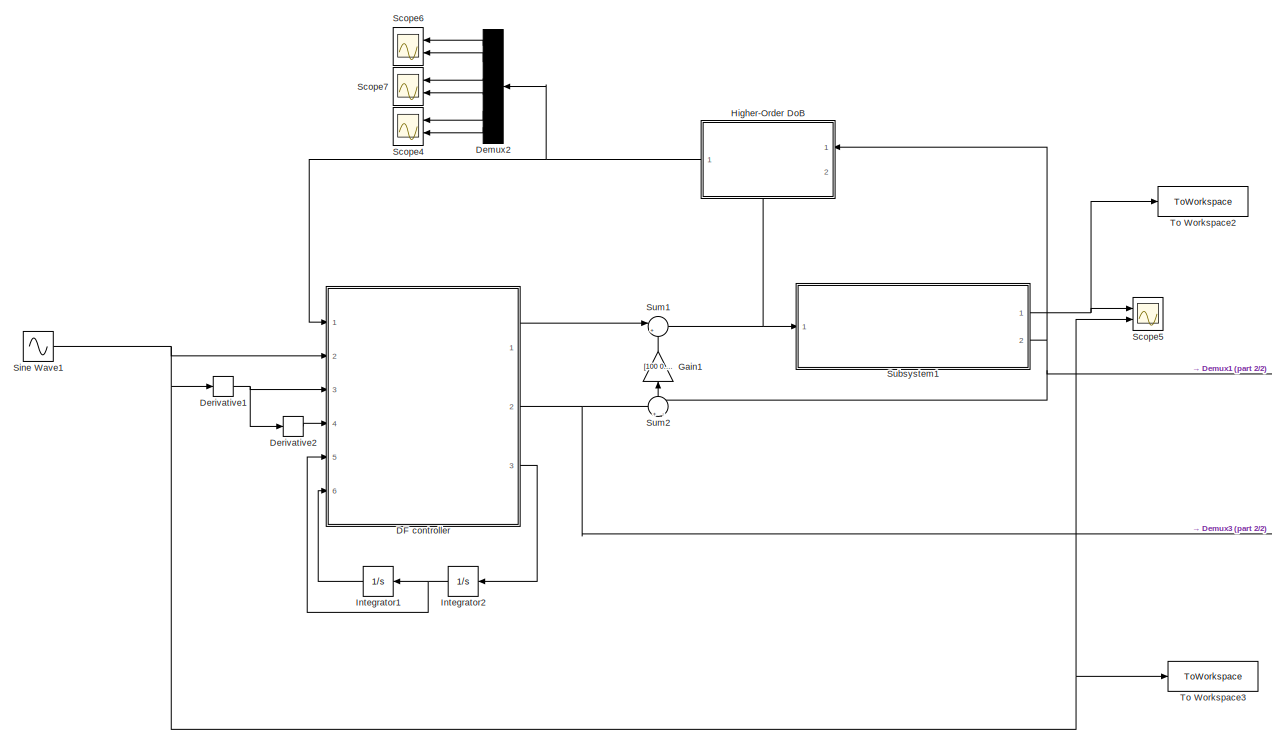
[diagram: root canvas - part 1/2, most of the canvas]
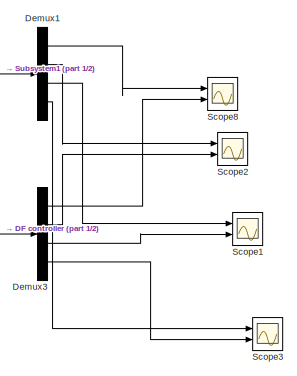
[diagram: root canvas - part 2/2, middle right region]
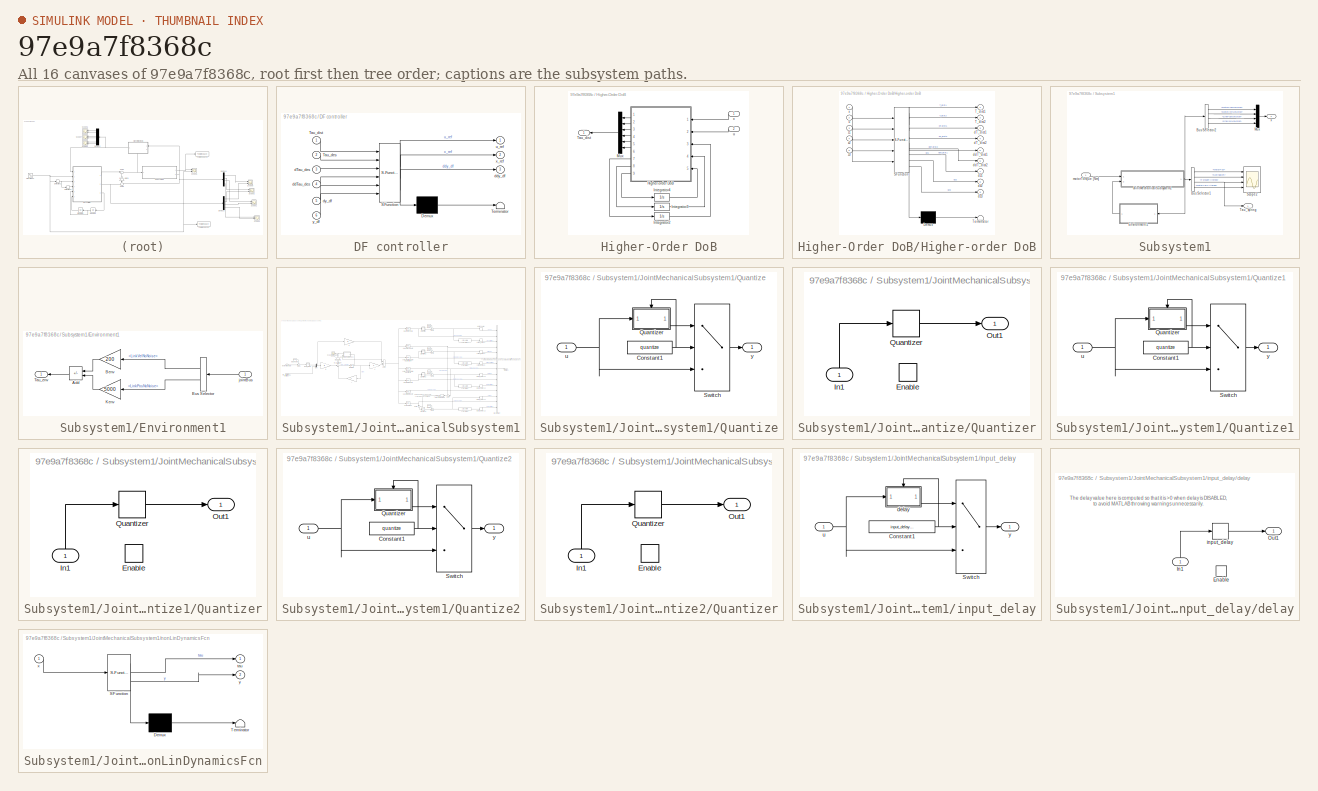
[diagram: thumbnail index - all 16 canvases of the model, root first then tree order]
MODEL slx_97e9a7f8368c
KIND model
CONFIG AbsTol = auto
CONFIG EnableMultiTasking = off
CONFIG FixedStep = 0.0001
CONFIG MaxStep = auto
CONFIG MinStep = auto
CONFIG RelTol = 1e-3
CONFIG SampleTimeConstraint = Unconstrained
CONFIG Solver = ode1
CONFIG SolverName = ode1
CONFIG StartTime = 0.0
CONFIG StopTime = 10
BLOCK [SubSystem] DF controller
  ErrorFcn = Stateflow.Translate.translate
  PermitHierarchicalResolution = ExplicitOnly
  Ports = [6, 3]
  RequestExecContextInheritance = off
  SFBlockType = MATLAB Function
  TreatAsAtomicUnit = on
BLOCK [Demux] DF controller/ Demux 
  Outputs = 1
  Ports = [1, 1]
BLOCK [S-Function] DF controller/ SFunction 
  EnableBusSupport = on
  FunctionName = sf_sfun
  PortCounts = [6 4]
  Ports = [6, 4]
  SFcnIsStateOwnerBlock = off
  SFunctionDeploymentMode = off
  Tag = Stateflow S-Function 1
BLOCK [Terminator] DF controller/ Terminator 
BLOCK [Inport] DF controller/Tau_des
  Port = 2
BLOCK [Inport] DF controller/Tau_dist
BLOCK [Inport] DF controller/dTau_des
  Port = 3
BLOCK [Inport] DF controller/ddTau_des
  Port = 4
BLOCK [Outport] DF controller/ddy_df
  Port = 3
BLOCK [Inport] DF controller/dy_df
  Port = 5
BLOCK [Outport] DF controller/u_ref
BLOCK [Outport] DF controller/x_ref
  Port = 2
BLOCK [Inport] DF controller/y_df
  Port = 6
BLOCK [Demux] Demux1
  Ports = [1, 4]
BLOCK [Demux] Demux2
  Outputs = 6
  Ports = [1, 6]
BLOCK [Demux] Demux3
  Ports = [1, 4]
BLOCK [Derivative] Derivative1
BLOCK [Derivative] Derivative2
BLOCK [Gain] Gain1
  Gain = [100 0.20 -10000 -20]
  Multiplication = Matrix(K*u)
  NameLocation = left
BLOCK [SubSystem] Higher-Order DoB
  NameLocation = top
  PortSchema = {"entries":[{"content":{"sides":[{"content":{"connectorIds":["In1"]},"type":"ConnectorPlacement.EquallySpacedRectSide","uuid":"033a9072-c968-43bf-9f71-6521bdc98383"},{"content":{"connectorIds":["Out1"],"side":"RIGHT"},"type":"ConnectorPlacement.EquallySpacedRectSide","uuid":"95ac0c33-e59d-4ac0-96cc-facae06806bd"},{"content":{"connectorIds":[],"side":"TOP"},"type":"ConnectorPlacement.EquallySpacedR...<+391ch>
  Ports = [2, 1]
  RequestExecContextInheritance = off
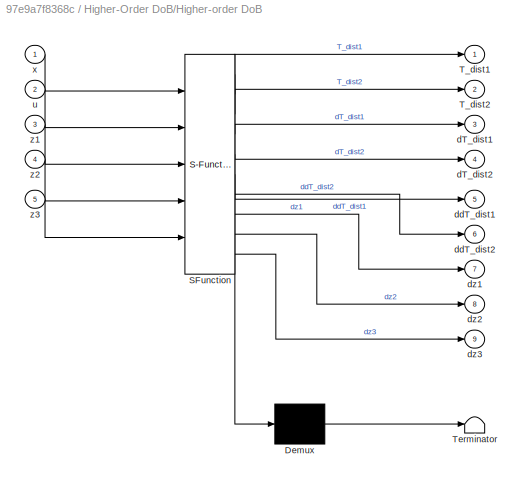
BLOCK [SubSystem] Higher-Order DoB/Higher-order DoB
  ErrorFcn = Stateflow.Translate.translate
  PermitHierarchicalResolution = ExplicitOnly
  Ports = [5, 9]
  RequestExecContextInheritance = off
  SFBlockType = MATLAB Function
  TreatAsAtomicUnit = on
BLOCK [Demux] Higher-Order DoB/Higher-order DoB/ Demux 
  Outputs = 1
  Ports = [1, 1]
BLOCK [S-Function] Higher-Order DoB/Higher-order DoB/ SFunction 
  EnableBusSupport = on
  FunctionName = sf_sfun
  PortCounts = [5 10]
  Ports = [5, 10]
  SFcnIsStateOwnerBlock = off
  SFunctionDeploymentMode = off
  Tag = Stateflow S-Function 2
BLOCK [Terminator] Higher-Order DoB/Higher-order DoB/ Terminator 
BLOCK [Outport] Higher-Order DoB/Higher-order DoB/T_dist1
BLOCK [Outport] Higher-Order DoB/Higher-order DoB/T_dist2
  Port = 2
BLOCK [Outport] Higher-Order DoB/Higher-order DoB/dT_dist1
  Port = 3
BLOCK [Outport] Higher-Order DoB/Higher-order DoB/dT_dist2
  Port = 4
BLOCK [Outport] Higher-Order DoB/Higher-order DoB/ddT_dist1
  Port = 5
BLOCK [Outport] Higher-Order DoB/Higher-order DoB/ddT_dist2
  Port = 6
BLOCK [Outport] Higher-Order DoB/Higher-order DoB/dz1
  Port = 7
BLOCK [Outport] Higher-Order DoB/Higher-order DoB/dz2
  Port = 8
BLOCK [Outport] Higher-Order DoB/Higher-order DoB/dz3
  Port = 9
BLOCK [Inport] Higher-Order DoB/Higher-order DoB/u
  Port = 2
BLOCK [Inport] Higher-Order DoB/Higher-order DoB/x
BLOCK [Inport] Higher-Order DoB/Higher-order DoB/z1
  Port = 3
BLOCK [Inport] Higher-Order DoB/Higher-order DoB/z2
  Port = 4
BLOCK [Inport] Higher-Order DoB/Higher-order DoB/z3
  Port = 5
BLOCK [Integrator] Higher-Order DoB/Integrator2
  Ports = [1, 1]
BLOCK [Integrator] Higher-Order DoB/Integrator3
  Ports = [1, 1]
BLOCK [Integrator] Higher-Order DoB/Integrator4
  Ports = [1, 1]
BLOCK [Mux] Higher-Order DoB/Mux
  DisplayOption = bar
  Inputs = 6
  Ports = [6, 1]
BLOCK [Outport] Higher-Order DoB/Tau_dist
BLOCK [Inport] Higher-Order DoB/u
  Port = 2
BLOCK [Inport] Higher-Order DoB/x
BLOCK [Integrator] Integrator1
  Ports = [1, 1]
BLOCK [Integrator] Integrator2
  Ports = [1, 1]
BLOCK [Scope] Scope1
  Floating = off
  NumInputPorts = 2
  Ports = [2]
  ScopeSpecificationString = Simulink.scopes.TimeScopeBlockCfg('CurrentConfiguration', extmgr.ConfigurationSet(extmgr.Configuration('Core','General UI',true),extmgr.Configuration('Core','Source UI',true),extmgr.Configuration('Sources','WiredSimulink',true,'DataLoggingVariableName','ScopeData1'),extmgr.Configuration('Visuals','Time Domain',true,'SerializedDisplays',{struct('MinYLimReal','-0.01443','MaxYLimReal','0.00589','YLab...<+1480ch>
BLOCK [Scope] Scope2
  Floating = off
  NumInputPorts = 2
  Ports = [2]
  ScopeSpecificationString = Simulink.scopes.TimeScopeBlockCfg('CurrentConfiguration', extmgr.ConfigurationSet(extmgr.Configuration('Core','General UI',true),extmgr.Configuration('Core','Source UI',true),extmgr.Configuration('Sources','WiredSimulink',true,'DataLoggingVariableName','ScopeData2'),extmgr.Configuration('Visuals','Time Domain',true,'SerializedDisplays',{struct('MinYLimReal','-1594.95081','MaxYLimReal','3999.1128',...<+1473ch>
BLOCK [Scope] Scope3
  Floating = off
  NumInputPorts = 2
  Ports = [2]
  ScopeSpecificationString = Simulink.scopes.TimeScopeBlockCfg('CurrentConfiguration', extmgr.ConfigurationSet(extmgr.Configuration('Core','General UI',true),extmgr.Configuration('Core','Source UI',true),extmgr.Configuration('Sources','WiredSimulink',true,'DataLoggingVariableName','ScopeData3'),extmgr.Configuration('Visuals','Time Domain',true,'SerializedDisplays',{struct('MinYLimReal','-0.00653','MaxYLimReal','0.05583','YLab...<+1480ch>
BLOCK [Scope] Scope4
  Floating = off
  NumInputPorts = 2
  Ports = [2]
  ScopeSpecificationString = Simulink.scopes.TimeScopeBlockCfg('CurrentConfiguration', extmgr.ConfigurationSet(extmgr.Configuration('Core','General UI',true),extmgr.Configuration('Core','Source UI',true),extmgr.Configuration('Sources','WiredSimulink',true,'DataLoggingVariableName','ScopeData4'),extmgr.Configuration('Visuals','Time Domain',true,'SerializedDisplays',{struct('MinYLimReal','-1112536.33184','MaxYLimReal','1088247....<+2069ch>
BLOCK [Scope] Scope5
  Floating = off
  NumInputPorts = 2
  Ports = [2]
  ScopeSpecificationString = Simulink.scopes.TimeScopeBlockCfg('CurrentConfiguration', extmgr.ConfigurationSet(extmgr.Configuration('Core','General UI',true),extmgr.Configuration('Core','Source UI',true),extmgr.Configuration('Sources','WiredSimulink',true,'DataLoggingVariableName','ScopeData5'),extmgr.Configuration('Visuals','Time Domain',true,'SerializedDisplays',{struct('MinYLimReal','-12.50538','MaxYLimReal','12.5006','YLa...<+1499ch>
BLOCK [Scope] Scope6
  Floating = off
  NumInputPorts = 2
  Ports = [2]
  ScopeSpecificationString = Simulink.scopes.TimeScopeBlockCfg('CurrentConfiguration', extmgr.ConfigurationSet(extmgr.Configuration('Core','General UI',true),extmgr.Configuration('Core','Source UI',true),extmgr.Configuration('Sources','WiredSimulink',true,'DataLoggingVariableName','ScopeData6'),extmgr.Configuration('Visuals','Time Domain',true,'SerializedDisplays',{struct('MinYLimReal','-0.85323','MaxYLimReal','0.87741','YLab...<+2102ch>
BLOCK [Scope] Scope7
  Floating = off
  NumInputPorts = 2
  Ports = [2]
  ScopeSpecificationString = Simulink.scopes.TimeScopeBlockCfg('CurrentConfiguration', extmgr.ConfigurationSet(extmgr.Configuration('Core','General UI',true),extmgr.Configuration('Core','Source UI',true),extmgr.Configuration('Sources','WiredSimulink',true,'DataLoggingVariableName','ScopeData7'),extmgr.Configuration('Visuals','Time Domain',true,'SerializedDisplays',{struct('MinYLimReal','-1687.3032','MaxYLimReal','1606.30695',...<+2057ch>
BLOCK [Scope] Scope8
  Floating = off
  NumInputPorts = 2
  Ports = [2]
  ScopeSpecificationString = Simulink.scopes.TimeScopeBlockCfg('CurrentConfiguration', extmgr.ConfigurationSet(extmgr.Configuration('Core','General UI',true),extmgr.Configuration('Core','Source UI',true),extmgr.Configuration('Sources','WiredSimulink',true,'DataLoggingVariableName','ScopeData8'),extmgr.Configuration('Visuals','Time Domain',true,'SerializedDisplays',{struct('MinYLimReal','-0.04497','MaxYLimReal','0.40324','YLab...<+1453ch>
BLOCK [Sin] Sine Wave1
  Amplitude = 10
  Ports = [0, 1]
  SampleTime = 0
BLOCK [SubSystem] Subsystem1
  Ports = [1, 2]
  RequestExecContextInheritance = off
BLOCK [BusSelector] Subsystem1/Bus Selector1
  OutputSignals = MotorPos,SpringDef,TorqueFiltered,MotorVelFiltered
  Ports = [1, 4]
BLOCK [BusSelector] Subsystem1/Bus Selector2
  OutputSignals = MotorPosNoNoise,MotorVelNoNoise,LinkPosNoNoise,LinkVelNoNoise
  Ports = [1, 4]
BLOCK [SubSystem] Subsystem1/Environment1
  Ports = [1, 1]
  RequestExecContextInheritance = off
BLOCK [Sum] Subsystem1/Environment1/Add
  IconShape = rectangular
  Inputs = --
  Ports = [2, 1]
BLOCK [Gain] Subsystem1/Environment1/Benv
  Gain = 200
BLOCK [BusSelector] Subsystem1/Environment1/Bus Selector
  OutputSignals = LinkVelNoNoise,LinkPosNoNoise
  Ports = [1, 2]
BLOCK [Gain] Subsystem1/Environment1/Kenv
  Gain = 5000
BLOCK [Outport] Subsystem1/Environment1/Tau_env
BLOCK [Inport] Subsystem1/Environment1/jointBus
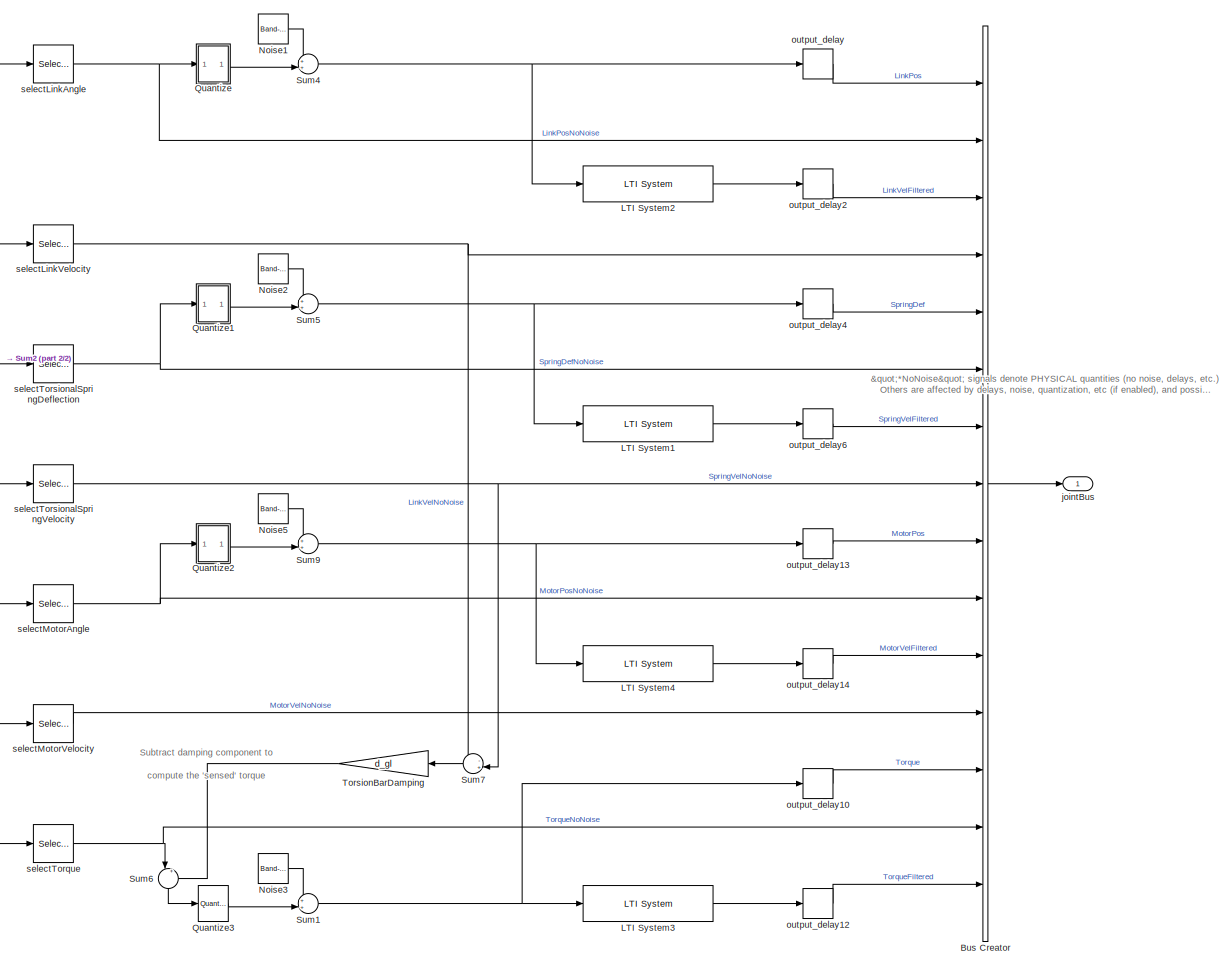
[diagram: Subsystem1/JointMechanicalSubsystem1 - part 1/2, right side, full height]
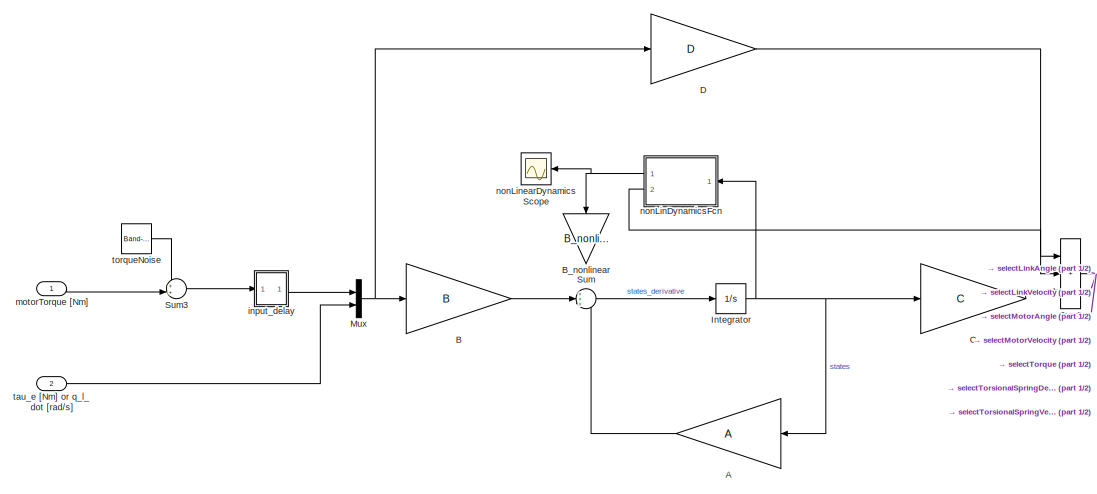
[diagram: Subsystem1/JointMechanicalSubsystem1 - part 2/2, middle left region]
BLOCK [SubSystem] Subsystem1/JointMechanicalSubsystem1
  AncestorBlock = cjt_library_models/Joint models/JointMechanicalSubsystem
  Ports = [2, 1]
  RequestExecContextInheritance = off
BLOCK [Gain] Subsystem1/JointMechanicalSubsystem1/A
  Gain = A
  Multiplication = Matrix(K*u)
BLOCK [Gain] Subsystem1/JointMechanicalSubsystem1/B
  Gain = B
  Multiplication = Matrix(K*u)
BLOCK [Gain] Subsystem1/JointMechanicalSubsystem1/B_nonlinear
  Gain = B_nonlinear
  NameLocation = left
BLOCK [BusCreator] Subsystem1/JointMechanicalSubsystem1/Bus Creator
  DisplayOption = bar
  InheritFromInputs = on
  Inputs = 15
  Ports = [15, 1]
BLOCK [Gain] Subsystem1/JointMechanicalSubsystem1/C
  Gain = C
  Multiplication = Matrix(K*u)
  NameLocation = top
BLOCK [Gain] Subsystem1/JointMechanicalSubsystem1/D
  Gain = D
  Multiplication = Matrix(K*u)
BLOCK [Integrator] Subsystem1/JointMechanicalSubsystem1/Integrator
  Ports = [1, 1]
BLOCK [Reference] Subsystem1/JointMechanicalSubsystem1/LTI System1  REF=cstblocks/LTI System
  Ports = [1, 1]
  SourceBlock = cstblocks/LTI System
  SourceProductBaseCode = CT
  SourceType = LTI Block
BLOCK [Reference] Subsystem1/JointMechanicalSubsystem1/LTI System2  REF=cstblocks/LTI System
  Ports = [1, 1]
  SourceBlock = cstblocks/LTI System
  SourceProductBaseCode = CT
  SourceType = LTI Block
BLOCK [Reference] Subsystem1/JointMechanicalSubsystem1/LTI System3  REF=cstblocks/LTI System
  Ports = [1, 1]
  SourceBlock = cstblocks/LTI System
  SourceProductBaseCode = CT
  SourceType = LTI Block
BLOCK [Reference] Subsystem1/JointMechanicalSubsystem1/LTI System4  REF=cstblocks/LTI System
  Ports = [1, 1]
  SourceBlock = cstblocks/LTI System
  SourceProductBaseCode = CT
  SourceType = LTI Block
BLOCK [Mux] Subsystem1/JointMechanicalSubsystem1/Mux
  DisplayOption = bar
  Inputs = 2
  Ports = [2, 1]
BLOCK [Reference] Subsystem1/JointMechanicalSubsystem1/Noise1  REF=simulink/Sources/Band-Limited
White Noise
  Ports = [0, 1]
  SourceBlock = simulink/Sources/Band-Limited\nWhite Noise
  SourceProductBaseCode = SL
  SourceType = Band-Limited White Noise.
BLOCK [Reference] Subsystem1/JointMechanicalSubsystem1/Noise2  REF=simulink/Sources/Band-Limited
White Noise
  Ports = [0, 1]
  SourceBlock = simulink/Sources/Band-Limited\nWhite Noise
  SourceProductBaseCode = SL
  SourceType = Band-Limited White Noise.
BLOCK [Reference] Subsystem1/JointMechanicalSubsystem1/Noise3  REF=simulink/Sources/Band-Limited
White Noise
  Ports = [0, 1]
  SourceBlock = simulink/Sources/Band-Limited\nWhite Noise
  SourceProductBaseCode = SL
  SourceType = Band-Limited White Noise.
BLOCK [Reference] Subsystem1/JointMechanicalSubsystem1/Noise5  REF=simulink/Sources/Band-Limited
White Noise
  Ports = [0, 1]
  SourceBlock = simulink/Sources/Band-Limited\nWhite Noise
  SourceProductBaseCode = SL
  SourceType = Band-Limited White Noise.
BLOCK [SubSystem] Subsystem1/JointMechanicalSubsystem1/Quantize
  Ports = [1, 1]
  RequestExecContextInheritance = off
BLOCK [Constant] Subsystem1/JointMechanicalSubsystem1/Quantize/Constant1
  Value = quantize
BLOCK [SubSystem] Subsystem1/JointMechanicalSubsystem1/Quantize/Quantizer
  Ports = [1, 1, 1]
  RequestExecContextInheritance = off
BLOCK [EnablePort] Subsystem1/JointMechanicalSubsystem1/Quantize/Quantizer/Enable
  Ports = []
BLOCK [Inport] Subsystem1/JointMechanicalSubsystem1/Quantize/Quantizer/In1
  NameLocation = right
BLOCK [Outport] Subsystem1/JointMechanicalSubsystem1/Quantize/Quantizer/Out1
BLOCK [Quantizer] Subsystem1/JointMechanicalSubsystem1/Quantize/Quantizer/Quantizer
  QuantizationInterval = 1/(2^quantize_bits)
BLOCK [Switch] Subsystem1/JointMechanicalSubsystem1/Quantize/Switch
  Criteria = u2 > Threshold
  InputSameDT = off
  SaturateOnIntegerOverflow = off
  Threshold = 0.5
BLOCK [Inport] Subsystem1/JointMechanicalSubsystem1/Quantize/u
BLOCK [Outport] Subsystem1/JointMechanicalSubsystem1/Quantize/y
BLOCK [SubSystem] Subsystem1/JointMechanicalSubsystem1/Quantize1
  Ports = [1, 1]
  RequestExecContextInheritance = off
BLOCK [Constant] Subsystem1/JointMechanicalSubsystem1/Quantize1/Constant1
  Value = quantize
BLOCK [SubSystem] Subsystem1/JointMechanicalSubsystem1/Quantize1/Quantizer
  Ports = [1, 1, 1]
  RequestExecContextInheritance = off
BLOCK [EnablePort] Subsystem1/JointMechanicalSubsystem1/Quantize1/Quantizer/Enable
  Ports = []
BLOCK [Inport] Subsystem1/JointMechanicalSubsystem1/Quantize1/Quantizer/In1
  NameLocation = right
BLOCK [Outport] Subsystem1/JointMechanicalSubsystem1/Quantize1/Quantizer/Out1
BLOCK [Quantizer] Subsystem1/JointMechanicalSubsystem1/Quantize1/Quantizer/Quantizer
  QuantizationInterval = 1/(2^quantize_bits)
BLOCK [Switch] Subsystem1/JointMechanicalSubsystem1/Quantize1/Switch
  Criteria = u2 > Threshold
  InputSameDT = off
  SaturateOnIntegerOverflow = off
  Threshold = 0.5
BLOCK [Inport] Subsystem1/JointMechanicalSubsystem1/Quantize1/u
BLOCK [Outport] Subsystem1/JointMechanicalSubsystem1/Quantize1/y
BLOCK [SubSystem] Subsystem1/JointMechanicalSubsystem1/Quantize2
  Ports = [1, 1]
  RequestExecContextInheritance = off
BLOCK [Constant] Subsystem1/JointMechanicalSubsystem1/Quantize2/Constant1
  Value = quantize
BLOCK [SubSystem] Subsystem1/JointMechanicalSubsystem1/Quantize2/Quantizer
  Ports = [1, 1, 1]
  RequestExecContextInheritance = off
BLOCK [EnablePort] Subsystem1/JointMechanicalSubsystem1/Quantize2/Quantizer/Enable
  Ports = []
BLOCK [Inport] Subsystem1/JointMechanicalSubsystem1/Quantize2/Quantizer/In1
  NameLocation = right
BLOCK [Outport] Subsystem1/JointMechanicalSubsystem1/Quantize2/Quantizer/Out1
BLOCK [Quantizer] Subsystem1/JointMechanicalSubsystem1/Quantize2/Quantizer/Quantizer
  QuantizationInterval = 1/(2^quantize_bits)
BLOCK [Switch] Subsystem1/JointMechanicalSubsystem1/Quantize2/Switch
  Criteria = u2 > Threshold
  InputSameDT = off
  SaturateOnIntegerOverflow = off
  Threshold = 0.5
BLOCK [Inport] Subsystem1/JointMechanicalSubsystem1/Quantize2/u
BLOCK [Outport] Subsystem1/JointMechanicalSubsystem1/Quantize2/y
BLOCK [Reference] Subsystem1/JointMechanicalSubsystem1/Quantize3  REF=cjt_library_models/Joint models/JointMechanicalSubsystem/Quantize2
  Ports = [1, 1]
  SourceBlock = cjt_library_models/Joint models/JointMechanicalSubsystem/Quantize2
  SourceType = SubSystem
BLOCK [Sum] Subsystem1/JointMechanicalSubsystem1/Sum
  Inputs = +++
  Ports = [3, 1]
BLOCK [Sum] Subsystem1/JointMechanicalSubsystem1/Sum1
  Inputs = ++|
  Ports = [2, 1]
BLOCK [Sum] Subsystem1/JointMechanicalSubsystem1/Sum2
  IconShape = rectangular
  Inputs = +++
  Ports = [3, 1]
BLOCK [Sum] Subsystem1/JointMechanicalSubsystem1/Sum3
  Inputs = ++|
  Ports = [2, 1]
BLOCK [Sum] Subsystem1/JointMechanicalSubsystem1/Sum4
  Inputs = ++|
  Ports = [2, 1]
BLOCK [Sum] Subsystem1/JointMechanicalSubsystem1/Sum5
  Inputs = ++|
  Ports = [2, 1]
BLOCK [Sum] Subsystem1/JointMechanicalSubsystem1/Sum6
  Inputs = |+-
  NameLocation = left
  Ports = [2, 1]
BLOCK [Sum] Subsystem1/JointMechanicalSubsystem1/Sum7
  Inputs = -+|
  NameLocation = top
  Ports = [2, 1]
BLOCK [Sum] Subsystem1/JointMechanicalSubsystem1/Sum9
  Inputs = ++|
  Ports = [2, 1]
BLOCK [Gain] Subsystem1/JointMechanicalSubsystem1/TorsionBarDamping
  Gain = d_gl
  NameLocation = top
BLOCK [SubSystem] Subsystem1/JointMechanicalSubsystem1/input_delay
  Ports = [1, 1]
  RequestExecContextInheritance = off
BLOCK [Constant] Subsystem1/JointMechanicalSubsystem1/input_delay/Constant1
  Value = input_delay_enable
BLOCK [Switch] Subsystem1/JointMechanicalSubsystem1/input_delay/Switch
  Criteria = u2 > Threshold
  InputSameDT = off
  SaturateOnIntegerOverflow = off
BLOCK [SubSystem] Subsystem1/JointMechanicalSubsystem1/input_delay/delay
  Ports = [1, 1, 1]
  RequestExecContextInheritance = off
BLOCK [EnablePort] Subsystem1/JointMechanicalSubsystem1/input_delay/delay/Enable
  Ports = []
BLOCK [Inport] Subsystem1/JointMechanicalSubsystem1/input_delay/delay/In1
  NameLocation = right
BLOCK [Outport] Subsystem1/JointMechanicalSubsystem1/input_delay/delay/Out1
BLOCK [TransportDelay] Subsystem1/JointMechanicalSubsystem1/input_delay/delay/input_delay
  DelayTime = input_delay * jointObj.Ts + 1 - input_delay_enable
  Ports = [1, 1]
  TransDelayFeedthrough = on
BLOCK [Inport] Subsystem1/JointMechanicalSubsystem1/input_delay/u
BLOCK [Outport] Subsystem1/JointMechanicalSubsystem1/input_delay/y
BLOCK [Outport] Subsystem1/JointMechanicalSubsystem1/jointBus
BLOCK [Inport] Subsystem1/JointMechanicalSubsystem1/motorTorque [Nm]
BLOCK [SubSystem] Subsystem1/JointMechanicalSubsystem1/nonLinDynamicsFcn
  ErrorFcn = Stateflow.Translate.translate
  PermitHierarchicalResolution = ExplicitOnly
  Ports = [1, 2]
  RequestExecContextInheritance = off
  SFBlockType = MATLAB Function
  TreatAsAtomicUnit = on
BLOCK [Demux] Subsystem1/JointMechanicalSubsystem1/nonLinDynamicsFcn/ Demux 
  Outputs = 1
  Ports = [1, 1]
BLOCK [S-Function] Subsystem1/JointMechanicalSubsystem1/nonLinDynamicsFcn/ SFunction 
  EnableBusSupport = on
  FunctionName = sf_sfun
  PortCounts = [1 3]
  Ports = [1, 3]
  SFcnIsStateOwnerBlock = off
  SFunctionDeploymentMode = off
  Tag = Stateflow S-Function 3
BLOCK [Terminator] Subsystem1/JointMechanicalSubsystem1/nonLinDynamicsFcn/ Terminator 
BLOCK [Outport] Subsystem1/JointMechanicalSubsystem1/nonLinDynamicsFcn/tau
  PortDimensions = 4
BLOCK [Inport] Subsystem1/JointMechanicalSubsystem1/nonLinDynamicsFcn/x
BLOCK [Outport] Subsystem1/JointMechanicalSubsystem1/nonLinDynamicsFcn/y
  Port = 2
  PortDimensions = 7
BLOCK [Scope] Subsystem1/JointMechanicalSubsystem1/nonLinearDynamicsScope
  Floating = off
  NameLocation = top
  NumInputPorts = 1
  Ports = [1]
  ScopeSpecificationString = Simulink.scopes.TimeScopeBlockCfg('CurrentConfiguration', extmgr.ConfigurationSet(extmgr.Configuration('Core','General UI',true),extmgr.Configuration('Core','Source UI',true),extmgr.Configuration('Sources','WiredSimulink',true,'DataLoggingLimitDataPoints',true,'DataLoggingSaveFormat','Array','DataLoggingDecimation','1','DataLoggingDecimateData',true),extmgr.Configuration('Visuals','Time Domain',tr...<+860ch>
BLOCK [TransportDelay] Subsystem1/JointMechanicalSubsystem1/output_delay
  DelayTime = output_delay * jointObj.Ts
  Ports = [1, 1]
BLOCK [TransportDelay] Subsystem1/JointMechanicalSubsystem1/output_delay10
  DelayTime = output_delay * jointObj.Ts
  Ports = [1, 1]
BLOCK [TransportDelay] Subsystem1/JointMechanicalSubsystem1/output_delay12
  DelayTime = output_delay * jointObj.Ts
  Ports = [1, 1]
BLOCK [TransportDelay] Subsystem1/JointMechanicalSubsystem1/output_delay13
  DelayTime = output_delay * jointObj.Ts
  Ports = [1, 1]
BLOCK [TransportDelay] Subsystem1/JointMechanicalSubsystem1/output_delay14
  DelayTime = output_delay * jointObj.Ts
  Ports = [1, 1]
BLOCK [TransportDelay] Subsystem1/JointMechanicalSubsystem1/output_delay2
  DelayTime = output_delay * jointObj.Ts
  Ports = [1, 1]
BLOCK [TransportDelay] Subsystem1/JointMechanicalSubsystem1/output_delay4
  DelayTime = output_delay * jointObj.Ts
  Ports = [1, 1]
BLOCK [TransportDelay] Subsystem1/JointMechanicalSubsystem1/output_delay6
  DelayTime = output_delay * jointObj.Ts
  Ports = [1, 1]
BLOCK [Selector] Subsystem1/JointMechanicalSubsystem1/selectLinkAngle
  IndexOptions = Index vector (dialog),Select all
  Indices = 3,1
  InputPortWidth = 3
  NumberOfDimensions = 2
  OutputSizes = 1,1
  Ports = [1, 1]
BLOCK [Selector] Subsystem1/JointMechanicalSubsystem1/selectLinkVelocity
  IndexOptions = Index vector (dialog),Select all
  Indices = 6,1
  InputPortWidth = 3
  NumberOfDimensions = 2
  OutputSizes = 1,1
  Ports = [1, 1]
BLOCK [Selector] Subsystem1/JointMechanicalSubsystem1/selectMotorAngle
  IndexOptions = Index vector (dialog),Select all
  Indices = 1,1
  InputPortWidth = 3
  NumberOfDimensions = 2
  OutputSizes = 1,1
  Ports = [1, 1]
BLOCK [Selector] Subsystem1/JointMechanicalSubsystem1/selectMotorVelocity
  IndexOptions = Index vector (dialog),Select all
  Indices = 4,1
  InputPortWidth = 3
  NumberOfDimensions = 2
  OutputSizes = 1,1
  Ports = [1, 1]
BLOCK [Selector] Subsystem1/JointMechanicalSubsystem1/selectTorque
  IndexOptions = Index vector (dialog),Select all
  Indices = 7,1
  InputPortWidth = 3
  NumberOfDimensions = 2
  OutputSizes = 1,1
  Ports = [1, 1]
BLOCK [Selector] Subsystem1/JointMechanicalSubsystem1/selectTorsionalSpringDeflection
  IndexOptions = Index vector (dialog),Select all
  Indices = 2,1
  InputPortWidth = 3
  NumberOfDimensions = 2
  OutputSizes = 1,1
  Ports = [1, 1]
BLOCK [Selector] Subsystem1/JointMechanicalSubsystem1/selectTorsionalSpringVelocity
  IndexOptions = Index vector (dialog),Select all
  Indices = 5,1
  InputPortWidth = 3
  NumberOfDimensions = 2
  OutputSizes = 1,1
  Ports = [1, 1]
BLOCK [Inport] Subsystem1/JointMechanicalSubsystem1/tau_e [Nm] or q_l_dot [rad//s]
  Port = 2
BLOCK [Reference] Subsystem1/JointMechanicalSubsystem1/torqueNoise  REF=simulink/Sources/Band-Limited
White Noise
  Ports = [0, 1]
  SourceBlock = simulink/Sources/Band-Limited\nWhite Noise
  SourceProductBaseCode = SL
  SourceType = Band-Limited White Noise.
BLOCK [Mux] Subsystem1/Mux
  DisplayOption = bar
  Ports = [4, 1]
BLOCK [Scope] Subsystem1/Scope2
  Floating = off
  NumInputPorts = 4
  Ports = [4]
  ScopeSpecificationString = Simulink.scopes.TimeScopeBlockCfg('CurrentConfiguration', extmgr.ConfigurationSet(extmgr.Configuration('Core','General UI',true),extmgr.Configuration('Core','Source UI',true),extmgr.Configuration('Sources','WiredSimulink',true,'DataLoggingVariableName','ScopeData1'),extmgr.Configuration('Visuals','Time Domain',true,'SerializedDisplays',{struct('MinYLimReal','-0.46353','MaxYLimReal','0.53373','YLab...<+3516ch>
BLOCK [Outport] Subsystem1/Tau_spring
BLOCK [Inport] Subsystem1/motorTorque [Nm]
BLOCK [Outport] Subsystem1/x
  Port = 2
BLOCK [Sum] Sum1
  Inputs = |++
  Ports = [2, 1]
BLOCK [Sum] Sum2
  Inputs = +|-
  NameLocation = left
  Ports = [2, 1]
BLOCK [ToWorkspace] To Workspace2
  FixptAsFi = on
  MaxDataPoints = inf
  Ports = [1]
  SampleTime = -1
  Save2DSignal = 2-D array (concatenate along first dimension)
  VariableName = DF_y
BLOCK [ToWorkspace] To Workspace3
  FixptAsFi = on
  MaxDataPoints = inf
  Ports = [1]
  SampleTime = -1
  Save2DSignal = 2-D array (concatenate along first dimension)
  VariableName = DF_u
ANNOTATION Subsystem1/JointMechanicalSubsystem1: Subtract damping component to compute the 'sensed' torque
ANNOTATION Subsystem1/JointMechanicalSubsystem1: "*NoNoise" signals denote PHYSICAL quantities (no noise, delays, etc.) Others are affected by delays, noise, quantization, etc (if enabled), and possibly filtered ("*Filtered")
ANNOTATION Subsystem1/JointMechanicalSubsystem1/input_delay/delay: The delay value here is computed so that it is >0 when delay is DISABLED, to avoid MATLAB throwing warnings unnecessarily.
LINE DF controller:1 -> Sum1:1
NET DF controller:2 -> Demux3:1, Sum2:1
LINE DF controller:3 -> Integrator2:1
LINE Demux1:1 -> Scope8:1
LINE Demux1:2 -> Scope2:1
LINE Demux1:3 -> Scope1:1
LINE Demux1:4 -> Scope3:1
LINE Demux2:1 -> Scope6:1
LINE Demux2:2 -> Scope6:2
LINE Demux2:3 -> Scope7:1
LINE Demux2:4 -> Scope7:2
LINE Demux2:5 -> Scope4:1
LINE Demux2:6 -> Scope4:2
LINE Demux3:1 -> Scope8:2
LINE Demux3:2 -> Scope2:2
LINE Demux3:3 -> Scope1:2
LINE Demux3:4 -> Scope3:2
NET Derivative1:1 -> DF controller:3, Derivative2:1
LINE Derivative2:1 -> DF controller:4
LINE Gain1:1 -> Sum1:2
LINE Higher-Order DoB/Higher-order DoB:1 -> Higher-Order DoB/Mux:1
LINE Higher-Order DoB/Higher-order DoB:2 -> Higher-Order DoB/Mux:2
LINE Higher-Order DoB/Higher-order DoB:3 -> Higher-Order DoB/Mux:3
LINE Higher-Order DoB/Higher-order DoB:4 -> Higher-Order DoB/Mux:4
LINE Higher-Order DoB/Higher-order DoB:5 -> Higher-Order DoB/Mux:5
LINE Higher-Order DoB/Higher-order DoB:6 -> Higher-Order DoB/Mux:6
LINE Higher-Order DoB/Higher-order DoB:7 -> Higher-Order DoB/Integrator2:1
LINE Higher-Order DoB/Higher-order DoB:8 -> Higher-Order DoB/Integrator3:1
LINE Higher-Order DoB/Higher-order DoB:9 -> Higher-Order DoB/Integrator4:1
LINE Higher-Order DoB/Integrator2:1 -> Higher-Order DoB/Higher-order DoB:3
LINE Higher-Order DoB/Integrator3:1 -> Higher-Order DoB/Higher-order DoB:4
LINE Higher-Order DoB/Integrator4:1 -> Higher-Order DoB/Higher-order DoB:5
LINE Higher-Order DoB/Mux:1 -> Higher-Order DoB/Tau_dist:1
LINE Higher-Order DoB/u:1 -> Higher-Order DoB/Higher-order DoB:2
LINE Higher-Order DoB/x:1 -> Higher-Order DoB/Higher-order DoB:1
NET Higher-Order DoB:1 -> DF controller:1, Demux2:1
LINE Integrator1:1 -> DF controller:6
NET Integrator2:1 -> DF controller:5, Integrator1:1
NET Sine Wave1:1 -> DF controller:2, Derivative1:1, Scope5:2, To Workspace3:1
LINE Subsystem1/Bus Selector1:1 -> Subsystem1/Scope2:1
LINE Subsystem1/Bus Selector1:2 -> Subsystem1/Scope2:2
NET Subsystem1/Bus Selector1:3 -> Subsystem1/Scope2:3, Subsystem1/Tau_spring:1
LINE Subsystem1/Bus Selector1:4 -> Subsystem1/Scope2:4
LINE Subsystem1/Bus Selector2:1 -> Subsystem1/Mux:1
LINE Subsystem1/Bus Selector2:2 -> Subsystem1/Mux:2
LINE Subsystem1/Bus Selector2:3 -> Subsystem1/Mux:3
LINE Subsystem1/Bus Selector2:4 -> Subsystem1/Mux:4
LINE Subsystem1/Environment1/Add:1 -> Subsystem1/Environment1/Tau_env:1
LINE Subsystem1/Environment1/Benv:1 -> Subsystem1/Environment1/Add:1
LINE Subsystem1/Environment1/Bus Selector:1 -> Subsystem1/Environment1/Benv:1
LINE Subsystem1/Environment1/Bus Selector:2 -> Subsystem1/Environment1/Kenv:1
LINE Subsystem1/Environment1/Kenv:1 -> Subsystem1/Environment1/Add:2
LINE Subsystem1/Environment1/jointBus:1 -> Subsystem1/Environment1/Bus Selector:1
LINE Subsystem1/Environment1:1 -> Subsystem1/JointMechanicalSubsystem1:2
NET Subsystem1/JointMechanicalSubsystem1:1 -> Subsystem1/Bus Selector1:1, Subsystem1/Bus Selector2:1, Subsystem1/Environment1:1
LINE Subsystem1/Mux:1 -> Subsystem1/x:1
LINE Subsystem1/motorTorque [Nm]:1 -> Subsystem1/JointMechanicalSubsystem1:1
NET Subsystem1:1 -> Scope5:1, To Workspace2:1
NET Subsystem1:2 -> Demux1:1, Higher-Order DoB:1, Sum2:2
NET Sum1:1 -> Higher-Order DoB:2, Subsystem1:1
LINE Sum2:1 -> Gain1:1
note: NET lines group one-source signal fan-out (src -> all destinations, sorted); 1:1 wires keep LINE
CHART DF controller states=1 transitions=1
  STATE_LABEL 'eML_blk_kernel()'
  STATE_LABEL 'SCRIPT:\nfunction [u_ref, x_ref, ddy_df] = fcn(Tau_dist, Tau_des, dTau_des, ddTau_des, dy_df, y_df)\n\nJm =  (2.781e-04); % kgm^2     *2\nBm = (1.5e-03);   % Nms/rad    *0.5\nK = 5000;      %Nm/rad         *1.1\nN = 100;        % -\nJl = 0.07;      % kgm^2        *1.5\nBl = 0.005;     % Nms/rad      *5\n\nKenv = 5000;\nBenv = 200;\n\nT_dist = Tau_dist(1:2);\ndT_dist = Tau_dist(3:4);\nddT_dist = Tau_dist(5:6);\n\nd...<+852ch>'
CHART Higher-Order DoB/Higher-order DoB states=1 transitions=1
  STATE_LABEL 'eML_blk_kernel()'
  STATE_LABEL 'SCRIPT:\nfunction [T_dist1, T_dist2, dT_dist1, dT_dist2, ddT_dist1, ddT_dist2, dz1, dz2, dz3] = fcn(x, u, z1, z2, z3)\n\nJm =  (2.781e-04); % kgm^2     *2\nBm = (1.5e-03);   % Nms/rad    *0.5\nK = 5000;      %Nm/rad         *1.1\nN = 100;        % -\nJl = 0.07;      % kgm^2        *1.5\nBl = 0.005;     % Nms/rad      *5\nKenv = 5000;\nBenv = 200;\n\n%% For states x = [qm dqm ql dql]\nA = [    0            1   ...<+736ch>'
CHART Subsystem1/JointMechanicalSubsystem1/nonLinDynamicsFcn states=1 transitions=1
  STATE_LABEL 'eML_blk_kernel()'
  STATE_LABEL 'SCRIPT:\nfunction [tau, y] = nonLinDynamics(x)\n%#codegen\n\nparams.a_CU = 0.003900;\nparams.c_CU = 380.000000;\nparams.c_FE = 460.000000;\nparams.diam = 98.000000;\nparams.len = 166.000000;\nparams.m = 3.400000;\nparams.I_m = 0.000278;\nparams.I_g = 0.000000;\nparams.I_l = 0.070000;\nparams.k_g = 0.000000;\nparams.k_b = 5000.000000;\nparams.d_m = 0.001500;\nparams.d_g = 0.000000;\nparams.d_l = 0.005000;\nparams.d_...<+1152ch>'
CHART  states=0 transitions=0
CHART  states=0 transitions=0
CHART  states=0 transitions=0
